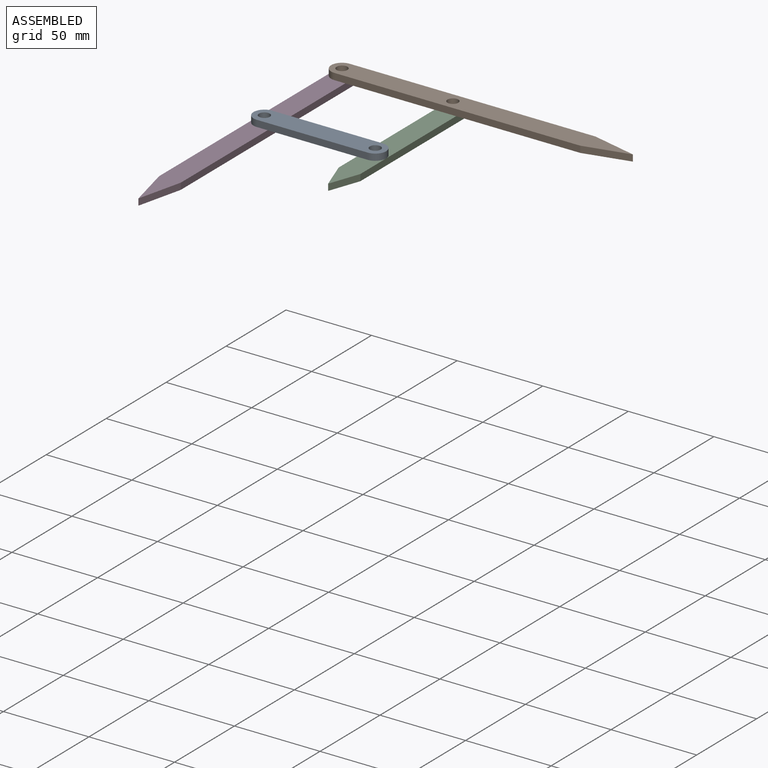
[diagram: assembled view]
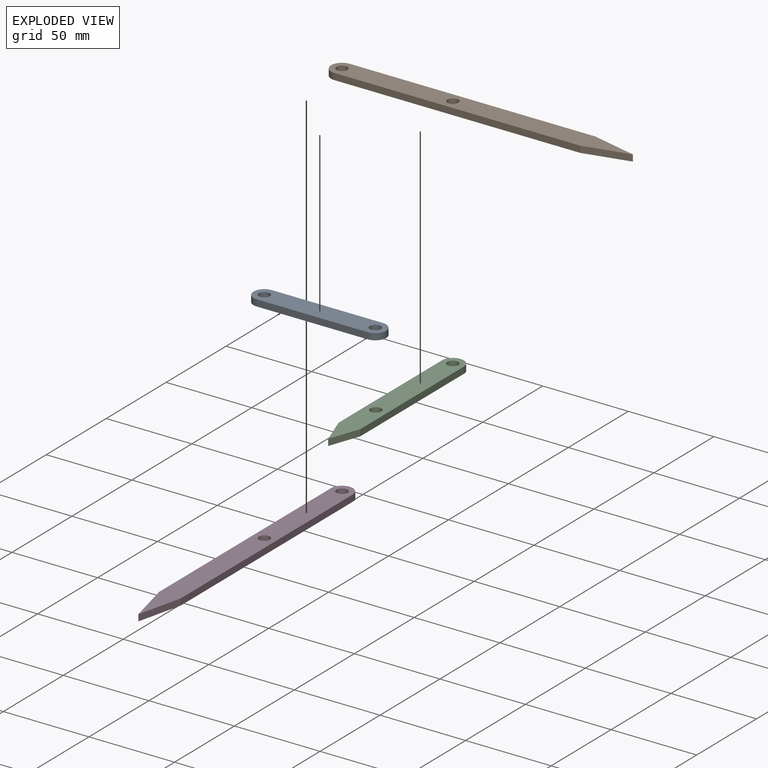
[diagram: exploded view]
GUIDED TOUR — MATED ASSEMBLY (Onshape document 84a3c5bfe465adbc8a6bc4fb, AutoMate assembly 84a3c5bfe465adbc8a6bc4fb_4d1bace5ff93dc2d0c0b74d7_6bc51d2b4cf942f477ca16b7_default)

This assembly has 4 components, labeled P0..P3 below (a component is one placed occurrence of a part; the same part can appear more than once), held together by 3 mates. A mate is a constraint between two components; its type names the relative motion it leaves free:
  PIN_SLOT — leaves rotation about the listed axis plus translation along a slot free.
Axis/direction vectors are unit vectors and 'through' points are millimeter coordinates, both in the assembly's world frame.

MATES
  1. PIN_SLOT "Pin slot 3": P0 <-> P3, axis (0.000, 0.000, -1.000) through (-50.98, 19.22, 0.38) mm
  2. PIN_SLOT "Pin slot 2": P2 <-> P1, axis (0.000, 0.000, 1.000) through (13.79, 83.99, 0.38) mm
  3. PIN_SLOT "Pin slot 1": P1 <-> P3, axis (0.000, 0.000, 1.000) through (-50.98, 83.99, 4.19) mm

ASSEMBLY ORDER
  1. P1 — the base component [order verified]
  2. P0 [order verified]
  3. P2 [order verified]
  4. P3 [order verified]
Order-tag legend:
  [order verified] — this step's position reverses a verified removal order: the component was checked to insert without passing through the ones already placed.

Of the 4 components, 4 carry the full construction recipe — the FeatureScript program that regenerates the part's solid from scratch; the rest are supplied as boundary geometry only.
Each toured component is shown spotlighted twice — in the assembled view, then in the exploded view, where a leader line traces a displaced component back to its assembled socket (saturated green if recipe-attached, orange if geometry-only; every other component desaturated gray) — followed by its recipe or geometry summary and the mates that hold it.
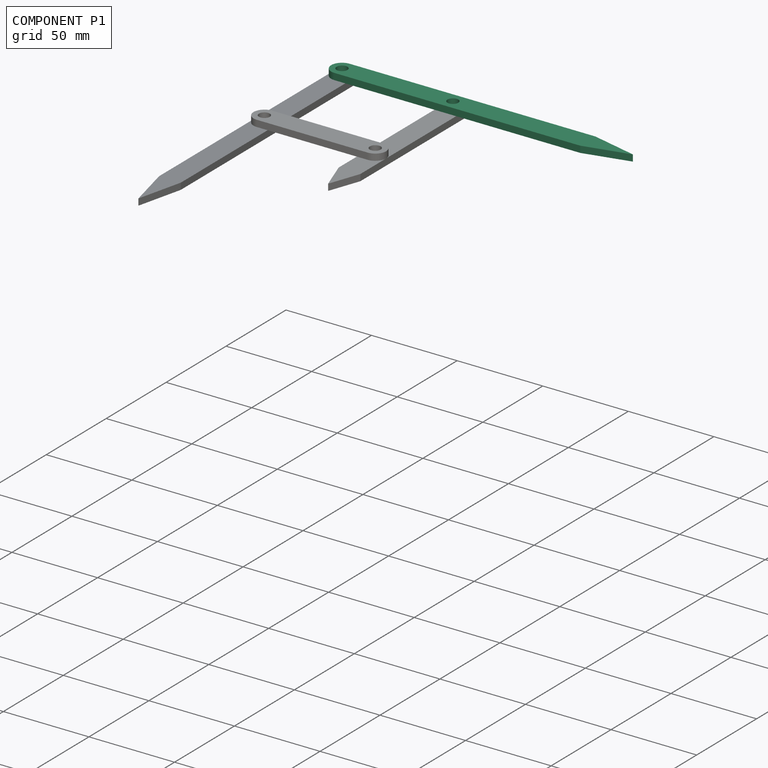
[diagram: component P1 — assembled]
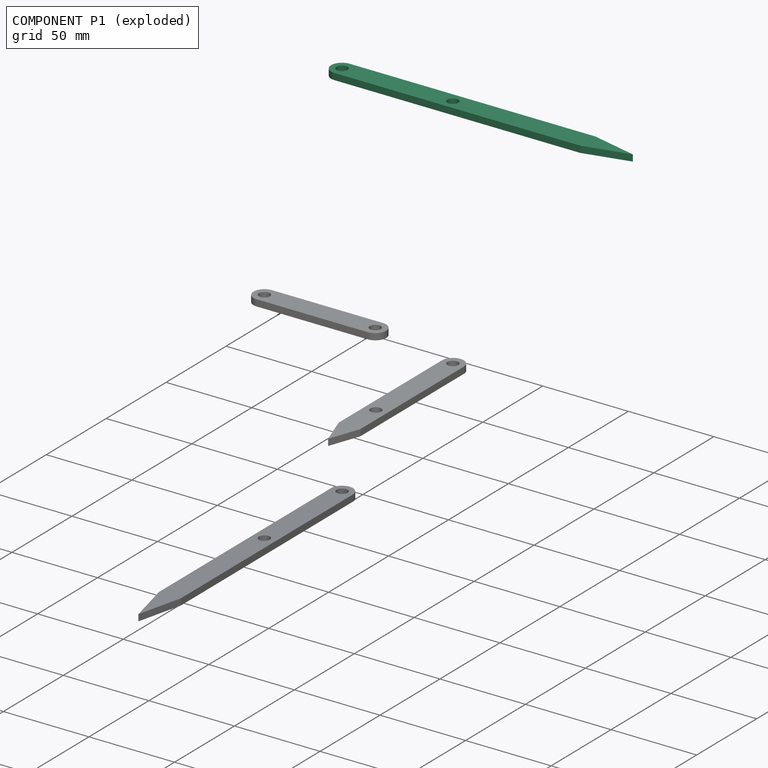
[diagram: component P1 — exploded]
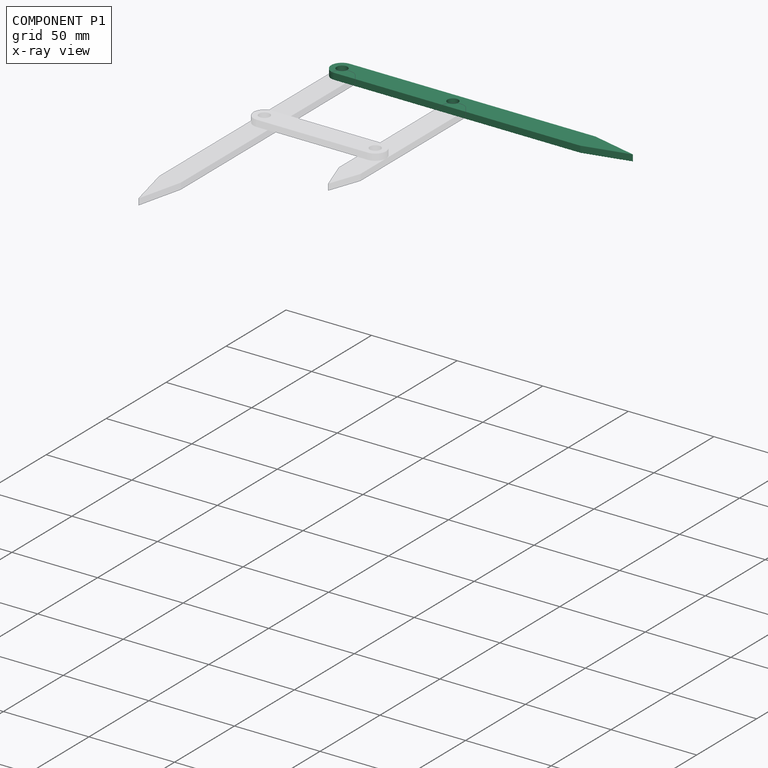
[diagram: component P1 — x-ray view]
COMPONENT P1 — recipe-attached (CADFS 00827533, mesh-verified: the recipe's output STEP matches this component's geometry to below the mesh-comparison resolution (tessellation chordal tolerance ~0.265 mm)).
Held by: PIN_SLOT mate "Pin slot 2" to P2; PIN_SLOT mate "Pin slot 1" to P3.
Construction recipe (FeatureScript — the CAD program that rebuilds this solid; sketch coordinates are in the units given by the * unit suffixes, e.g. mm):

FeatureScript 1511;
import(path : "onshape/std/geometry.fs", version : "1511.0");
import(path : "onshape/std/common.fs", version : "1511.0");
const mm = millimeter;
const VERTEX = EntityType.VERTEX;
const EDGE = EntityType.EDGE;
const FACE = EntityType.FACE;
const BODY = EntityType.BODY;
function v(x, y){return vector(x, y);}
function OD(order){return orderDisambiguation(order);}
function OSD(set){return originalSetDisambiguation(set);}
function TD(topology){return topologyDisambiguation(topology);}
function TDD(query){return trueDependencyDisambiguation(query);}
function sQuery(a, b, c) {return sketchEntityQuery(a, b, c);}

annotation { "Feature Type Name" : "Feature", "Feature Type Description" : "" }
export const myFeature = defineFeature(function(context is Context, id is Id, definition is map)
    precondition{}
    {
        {
            var Q0;
            Q0=qCreatedBy(makeId("Top.planeOp"),FACE);
            var sketch = newSketch(context, id + "F0", { "sketchPlane" : qUnion([Q0])});
            skLineSegment(sketch, "E0.bottom", {"start": v(-6.35, 84.96) * mm, "end": v(6.35, 84.96) * mm});
            skLineSegment(sketch, "E0.top", {"start": v(-6.35, -84.96) * mm, "end": v(6.35, -84.96) * mm});
            skLineSegment(sketch, "E0.left", {"start": v(-6.35, 84.96) * mm, "end": v(-6.35, -84.96) * mm});
            skLineSegment(sketch, "E0.right", {"start": v(6.35, 84.96) * mm, "end": v(6.35, -84.96) * mm});
            skPoint(sketch, "E0.middle", {"position": v(0, 0) * mm});
            skLineSegment(sketch, "E1", {"start": v(0, -84.96) * mm, "end": v(-6.35, -58.62) * mm});
            skLineSegment(sketch, "E2", {"start": v(-6.35, -58.62) * mm, "end": v(6.35, -58.62) * mm});
            skLineSegment(sketch, "E3", {"start": v(6.35, -58.62) * mm, "end": v(0, -84.96) * mm});
            skCircle(sketch, "E4", {"center": v(0, 84.96) * mm, "radius": 3.18 * mm});
            skArc(sketch, "E5", {"start": v(6.35, 84.96) * mm, "mid": v(0, 91.31) * mm, "end": v(-6.35, 84.96) * mm});
            skCircle(sketch, "E6", {"center": v(0, 20.2) * mm, "radius": 3.18 * mm});
            skSolve(sketch);
        }
        {
            var Q0;
            {var subQ4=sQuery(id+"F0.wireOp",EDGE,"E2");Q0=makeQuery(id+"F0.imprint","IMPRINT",FACE,{"disambiguationData":[TD([[makeQuery(id+"F0.imprint","IMPRINT",EDGE,{"derivedFrom":subQ4}),1.0]])]});}
            var Q1;
            Q1=makeQuery(id+"F0.imprint","IMPRINT",FACE,{"disambiguationData":[TD([[makeQuery(id+"F0.imprint","IMPRINT",EDGE,{"derivedFrom":sQuery(id+"F0.wireOp",EDGE,"E1")}),-1.0]])]});
            var Q2;
            {var subQ0=sQuery(id+"F0.wireOp",EDGE,"E5");Q2=makeQuery(id+"F0.imprint","IMPRINT",FACE,{"disambiguationData":[TD([[makeQuery(id+"F0.imprint","IMPRINT",EDGE,{"derivedFrom":subQ0}),1.0]])]});}
            extrude(context, id + "F1", {"entities" : qUnion([Q0, Q1, Q2]), "depth" : 3.8 * mm, "offsetDistance" : 25.4 * mm});
        }
    });
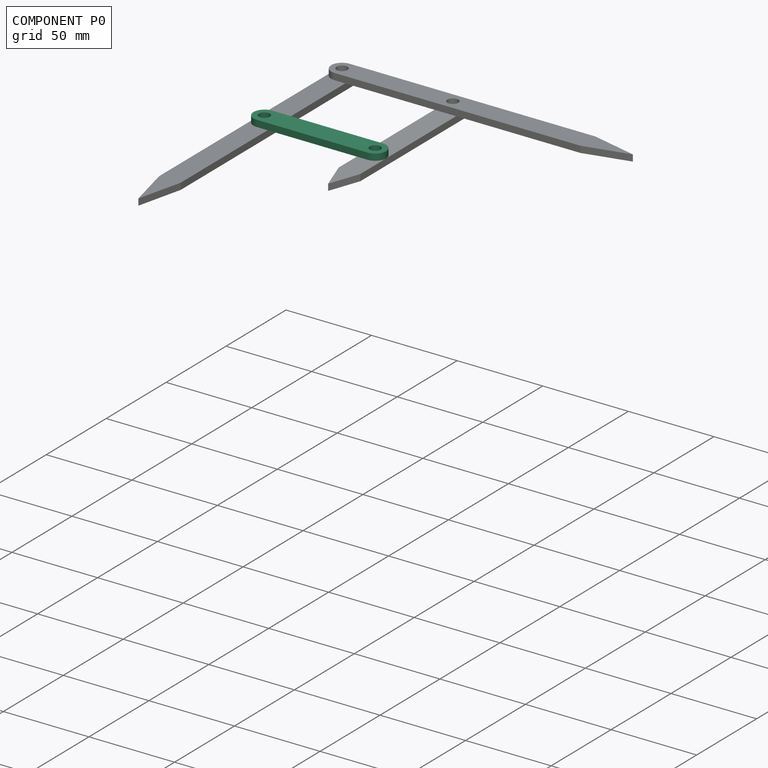
[diagram: component P0 — assembled]
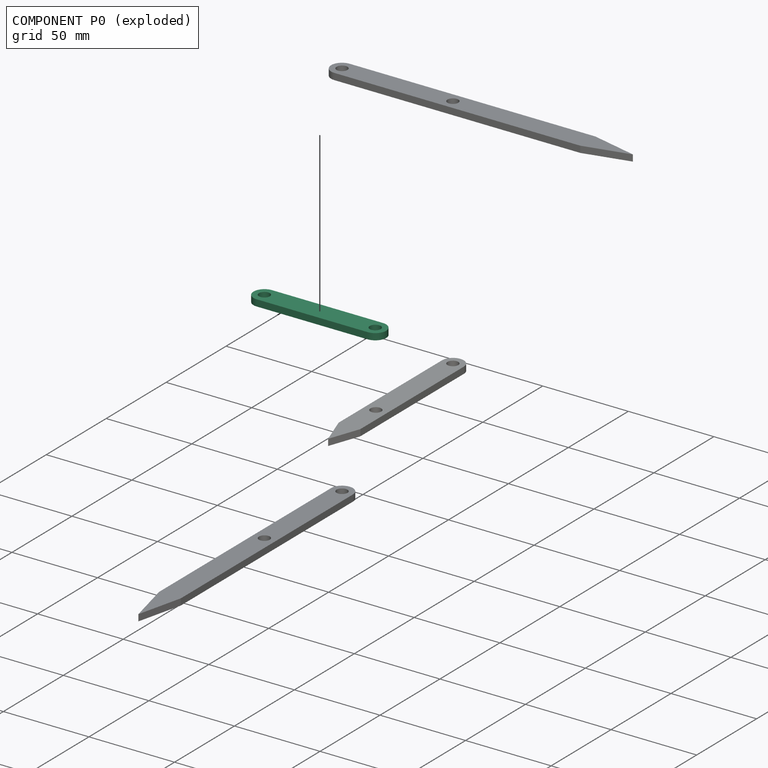
[diagram: component P0 — exploded]
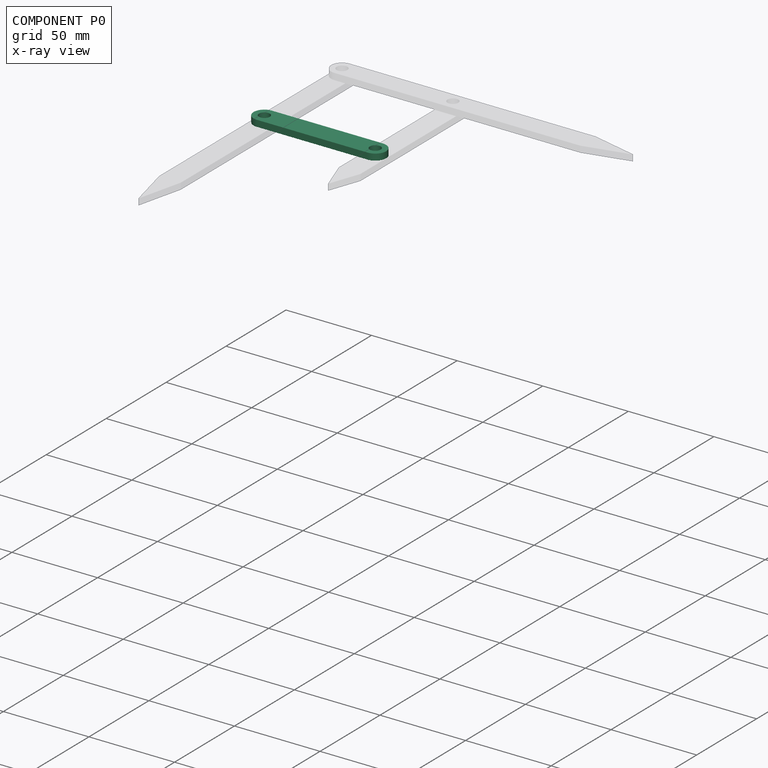
[diagram: component P0 — x-ray view]
COMPONENT P0 — recipe-attached (CADFS 00827535, mesh-verified: the recipe's output STEP matches this component's geometry to below the mesh-comparison resolution (tessellation chordal tolerance ~0.118 mm)).
Held by: PIN_SLOT mate "Pin slot 3" to P3.
Construction recipe (FeatureScript — the CAD program that rebuilds this solid; sketch coordinates are in the units given by the * unit suffixes, e.g. mm):

FeatureScript 1511;
import(path : "onshape/std/geometry.fs", version : "1511.0");
import(path : "onshape/std/common.fs", version : "1511.0");
const mm = millimeter;
const VERTEX = EntityType.VERTEX;
const EDGE = EntityType.EDGE;
const FACE = EntityType.FACE;
const BODY = EntityType.BODY;
function v(x, y){return vector(x, y);}
function OD(order){return orderDisambiguation(order);}
function OSD(set){return originalSetDisambiguation(set);}
function TD(topology){return topologyDisambiguation(topology);}
function TDD(query){return trueDependencyDisambiguation(query);}
function sQuery(a, b, c) {return sketchEntityQuery(a, b, c);}

annotation { "Feature Type Name" : "Feature", "Feature Type Description" : "" }
export const myFeature = defineFeature(function(context is Context, id is Id, definition is map)
    precondition{}
    {
        {
            var Q0;
            Q0=qCreatedBy(makeId("Top.planeOp"),FACE);
            var sketch = newSketch(context, id + "F0", { "sketchPlane" : qUnion([Q0])});
            skCircle(sketch, "E0", {"center": v(0, 32.39) * mm, "radius": 3.18 * mm});
            skCircle(sketch, "E1", {"center": v(0, -32.39) * mm, "radius": 3.18 * mm});
            skLineSegment(sketch, "E2", {"start": v(0, 0) * mm, "end": v(0, 29.21) * mm});
            skLineSegment(sketch, "E3", {"start": v(0, 0) * mm, "end": v(0, -29.21) * mm});
            skLineSegment(sketch, "E4.bottom", {"start": v(-6.35, 32.39) * mm, "end": v(6.35, 32.39) * mm});
            skLineSegment(sketch, "E4.top", {"start": v(-6.35, -32.38) * mm, "end": v(6.35, -32.38) * mm});
            skLineSegment(sketch, "E4.left", {"start": v(-6.35, 32.39) * mm, "end": v(-6.35, -32.39) * mm});
            skLineSegment(sketch, "E4.right", {"start": v(6.35, 32.39) * mm, "end": v(6.35, -32.39) * mm});
            skPoint(sketch, "E4.middle", {"position": v(0, 0) * mm});
            skArc(sketch, "E5", {"start": v(6.35, 32.39) * mm, "mid": v(0, 38.74) * mm, "end": v(-6.35, 32.39) * mm});
            skArc(sketch, "E6.MirrorCS", {"start": v(6.35, -32.39) * mm, "mid": v(0, -38.74) * mm, "end": v(-6.35, -32.39) * mm});
            skSolve(sketch);
        }
        {
            var Q0;
            Q0 = qSketchRegion(id + "F0", true);
            extrude(context, id + "F1", {"entities" : qUnion([Q0]), "depth" : 3.8 * mm, "offsetDistance" : 25.4 * mm});
        }
    });
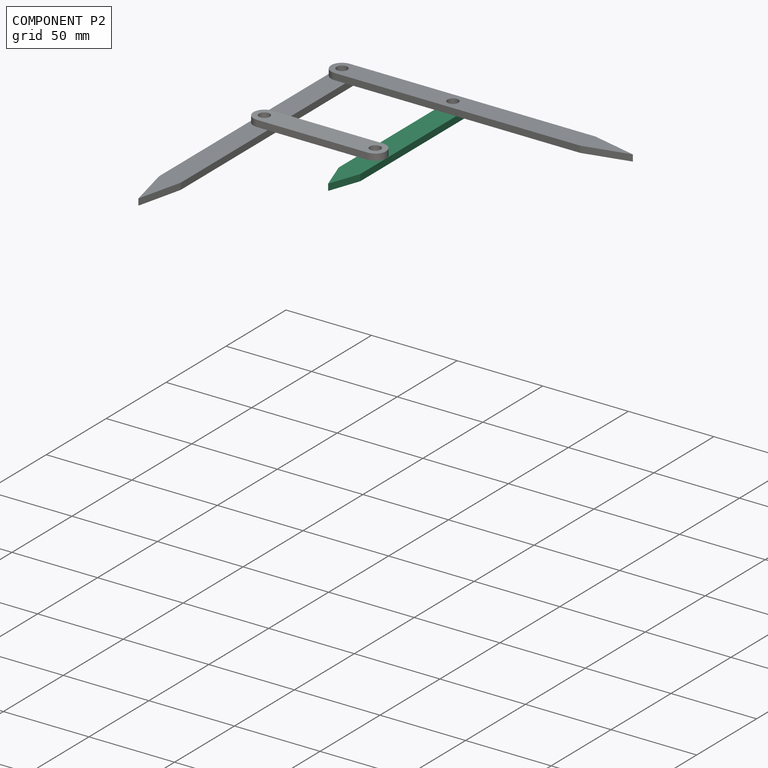
[diagram: component P2 — assembled]
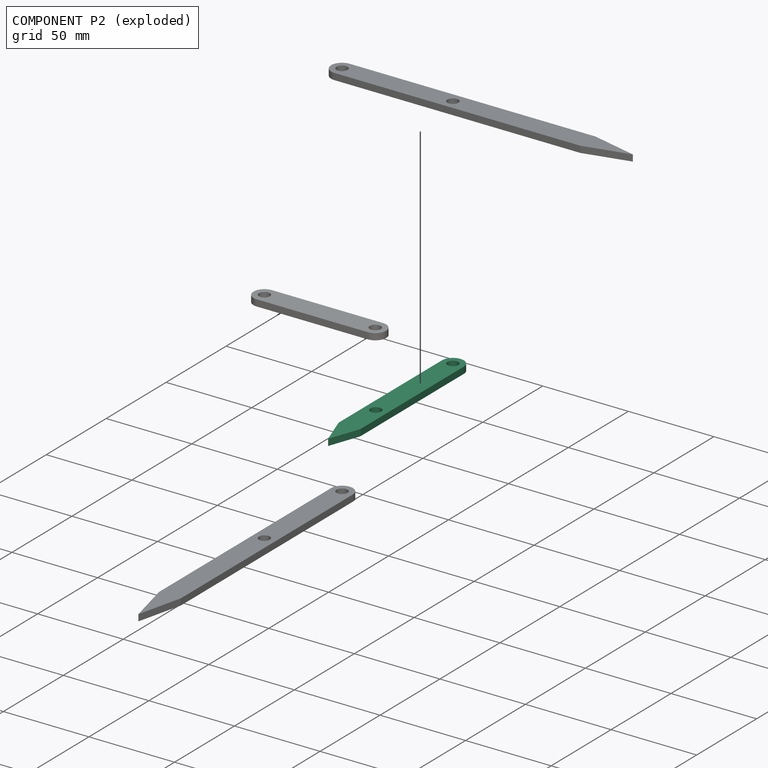
[diagram: component P2 — exploded]
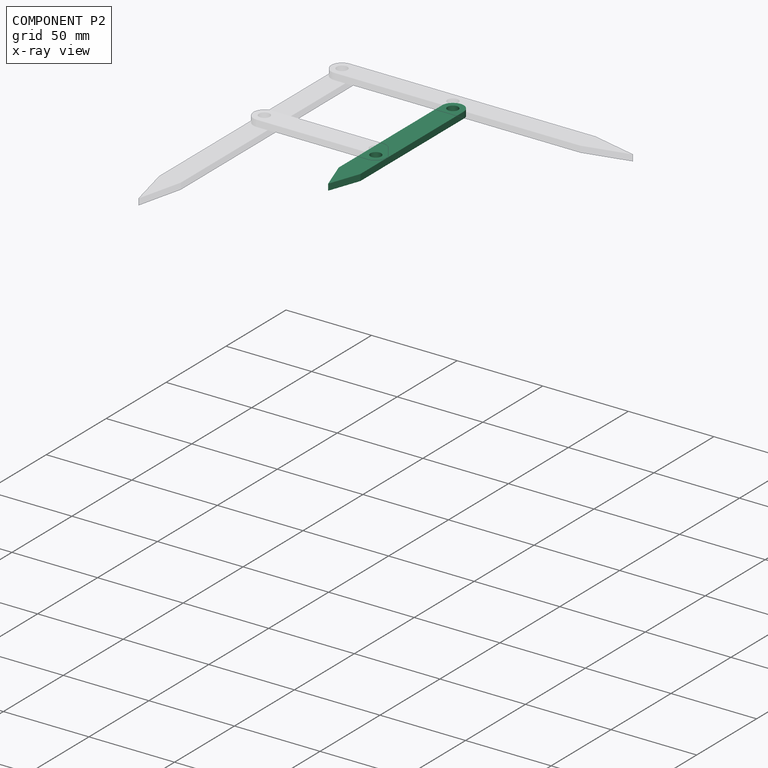
[diagram: component P2 — x-ray view]
COMPONENT P2 — recipe-attached (CADFS 00827534, mesh-verified: the recipe's output STEP matches this component's geometry to below the mesh-comparison resolution (tessellation chordal tolerance ~0.167 mm)).
Held by: PIN_SLOT mate "Pin slot 2" to P1.
Construction recipe (FeatureScript — the CAD program that rebuilds this solid; sketch coordinates are in the units given by the * unit suffixes, e.g. mm):

FeatureScript 1511;
import(path : "onshape/std/geometry.fs", version : "1511.0");
import(path : "onshape/std/common.fs", version : "1511.0");
const mm = millimeter;
const VERTEX = EntityType.VERTEX;
const EDGE = EntityType.EDGE;
const FACE = EntityType.FACE;
const BODY = EntityType.BODY;
function v(x, y){return vector(x, y);}
function OD(order){return orderDisambiguation(order);}
function OSD(set){return originalSetDisambiguation(set);}
function TD(topology){return topologyDisambiguation(topology);}
function TDD(query){return trueDependencyDisambiguation(query);}
function sQuery(a, b, c) {return sketchEntityQuery(a, b, c);}

annotation { "Feature Type Name" : "Feature", "Feature Type Description" : "" }
export const myFeature = defineFeature(function(context is Context, id is Id, definition is map)
    precondition{}
    {
        {
            var Q0;
            Q0=qCreatedBy(makeId("Top.planeOp"),FACE);
            var sketch = newSketch(context, id + "F0", { "sketchPlane" : qUnion([Q0])});
            skLineSegment(sketch, "E0.bottom", {"start": v(-6.35, 52.07) * mm, "end": v(6.35, 52.07) * mm});
            skLineSegment(sketch, "E0.top", {"start": v(-6.35, -52.07) * mm, "end": v(6.35, -52.07) * mm});
            skLineSegment(sketch, "E0.left", {"start": v(-6.35, 52.07) * mm, "end": v(-6.35, -52.07) * mm});
            skLineSegment(sketch, "E0.right", {"start": v(6.35, 52.07) * mm, "end": v(6.35, -52.07) * mm});
            skPoint(sketch, "E0.middle", {"position": v(0, 0) * mm});
            skCircle(sketch, "E1", {"center": v(0, 52.07) * mm, "radius": 3.18 * mm});
            skArc(sketch, "E2", {"start": v(6.35, 52.07) * mm, "mid": v(0, 58.42) * mm, "end": v(-6.35, 52.07) * mm});
            skLineSegment(sketch, "E3", {"start": v(0, -52.07) * mm, "end": v(-6.35, -34.23) * mm});
            skLineSegment(sketch, "E4", {"start": v(-6.35, -34.23) * mm, "end": v(6.35, -34.23) * mm});
            skLineSegment(sketch, "E5", {"start": v(6.35, -34.23) * mm, "end": v(0, -52.07) * mm});
            skCircle(sketch, "E6", {"center": v(0, -12.2) * mm, "radius": 3.18 * mm});
            skSolve(sketch);
        }
        {
            var Q0;
            {var subQ4=sQuery(id+"F0.wireOp",EDGE,"VFi7OpaB-yLmy-tm1l-0o5h-QAqS6r32s6S1");Q0=makeQuery(id+"F0.imprint","IMPRINT",FACE,{"disambiguationData":[TD([[makeQuery(id+"F0.imprint","IMPRINT",EDGE,{"derivedFrom":subQ4}),1.0]])]});}
            var Q1;
            Q1=makeQuery(id+"F0.imprint","IMPRINT",FACE,{"disambiguationData":[TD([[makeQuery(id+"F0.imprint","IMPRINT",EDGE,{"derivedFrom":sQuery(id+"F0.wireOp",EDGE,"m02FCX0K-uOYu-MlxC-pXOf-QfYkZrp66M1T")}),-1.0]])]});
            var Q2;
            {var subQ0=sQuery(id+"F0.wireOp",EDGE,"E2");Q2=makeQuery(id+"F0.imprint","IMPRINT",FACE,{"disambiguationData":[TD([[makeQuery(id+"F0.imprint","IMPRINT",EDGE,{"derivedFrom":subQ0}),1.0]])]});}
            extrude(context, id + "F1", {"entities" : qUnion([Q0, Q1, Q2]), "depth" : 3.8 * mm, "offsetDistance" : 25.4 * mm});
        }
        {
            var Q0;
            Q0=makeQuery(id+"F0.imprint","IMPRINT",FACE,{"disambiguationData":[TD([[makeQuery(id+"F0.imprint","IMPRINT",EDGE,{"derivedFrom":sQuery(id+"F0.wireOp",EDGE,"E3")}),-1.0]])]});
            var Q1;
            {var subQ4=sQuery(id+"F0.wireOp",EDGE,"E4");Q1=makeQuery(id+"F0.imprint","IMPRINT",FACE,{"disambiguationData":[TD([[makeQuery(id+"F0.imprint","IMPRINT",EDGE,{"derivedFrom":subQ4}),1.0]])]});}
            extrude(context, id + "F2", {"entities" : qUnion([Q0, Q1]), "operationType" : NewBodyOperationType.ADD, "depth" : 3.8 * mm, "offsetDistance" : 25.4 * mm});
        }
    });
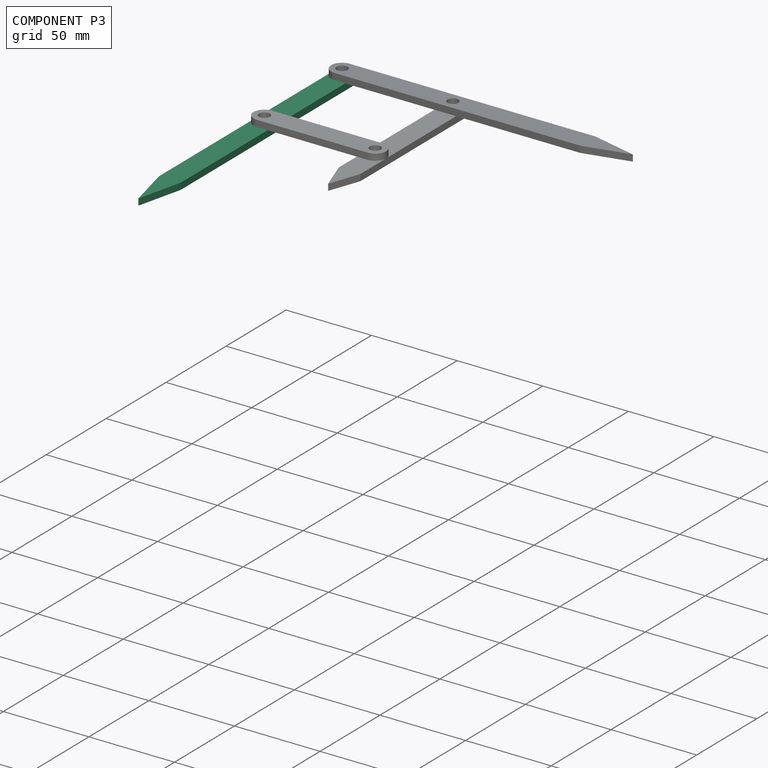
[diagram: component P3 — assembled]
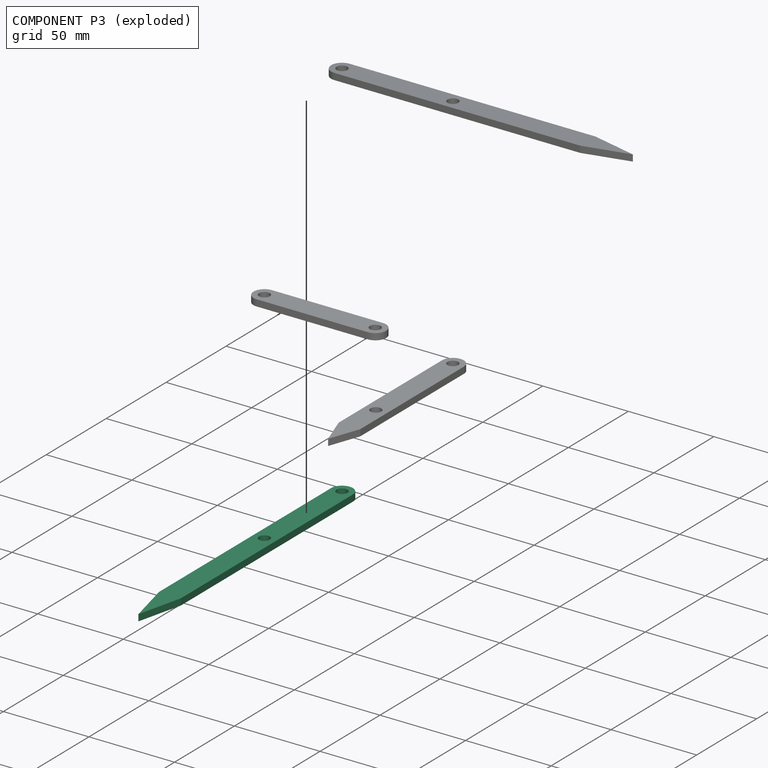
[diagram: component P3 — exploded]
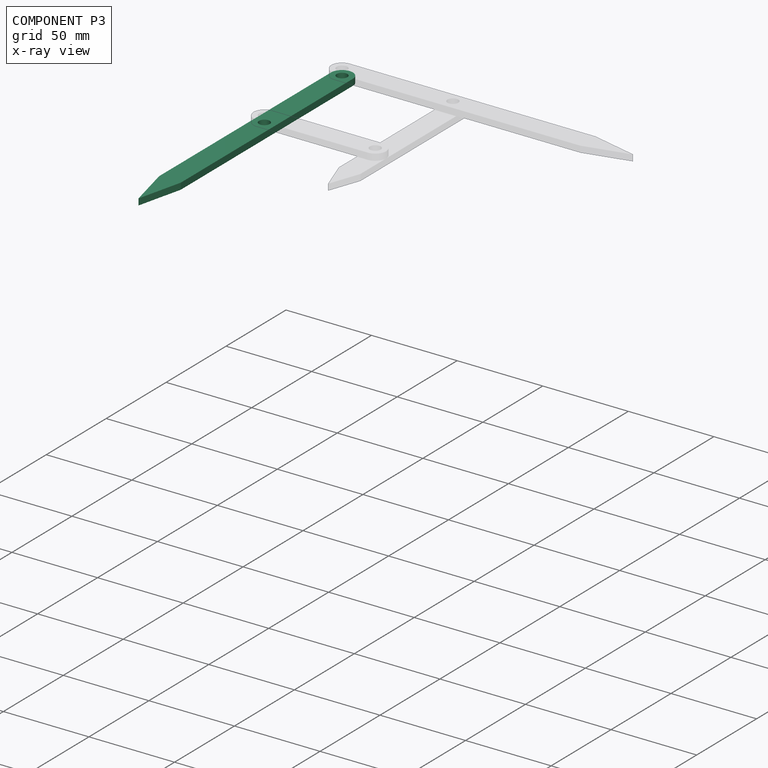
[diagram: component P3 — x-ray view]
COMPONENT P3 — same part as P1 (CADFS 00827533); its construction recipe is shown at P1.
Held by: PIN_SLOT mate "Pin slot 3" to P0; PIN_SLOT mate "Pin slot 1" to P1.
PROVENANCE & LICENSES
Assembly (occurrences, transforms, mates, per-part STEP geometry): AutoMate dataset, Zenodo record 7776208, CC0.
Construction recipes: CADFS (HuggingFace VladPyatov/CADFS, CC-BY-4.0, layered over the ABC dataset), FeatureScript reconstruction programs keyed by ABC model id.
Join: ABC meta listings map ABC model id -> Onshape documentId; within a shared document, parts are matched by geometric signature (bounding-box dims + volume at 0.1% relative tolerance, exact B-rep face/solid counts).
Verification: 4 of this assembly's 4 components carry a recipe attachment, and every attachment is mesh-verified: the CADFS STEP and the AutoMate member STEP were compared as meshes in their shared local frame (symmetric sampled-point-to-mesh distance); worst across the 4 attachments: below the mesh-comparison resolution (tessellation chordal tolerance ~0.265 mm) on a 177 mm part.
Renders: orthographic iso camera (az 35 / el 25); the floor grid conveys scale (grid pitch printed in each image; no ruler). In the exploded view each component is displaced by its stored offset vector: the offsets alone carry the explosion direction (mate normal/axis signs are not orientation cues and do not encode it), and separation distances are assigned per mate-chain, not proportionally to assembly-order depth.
